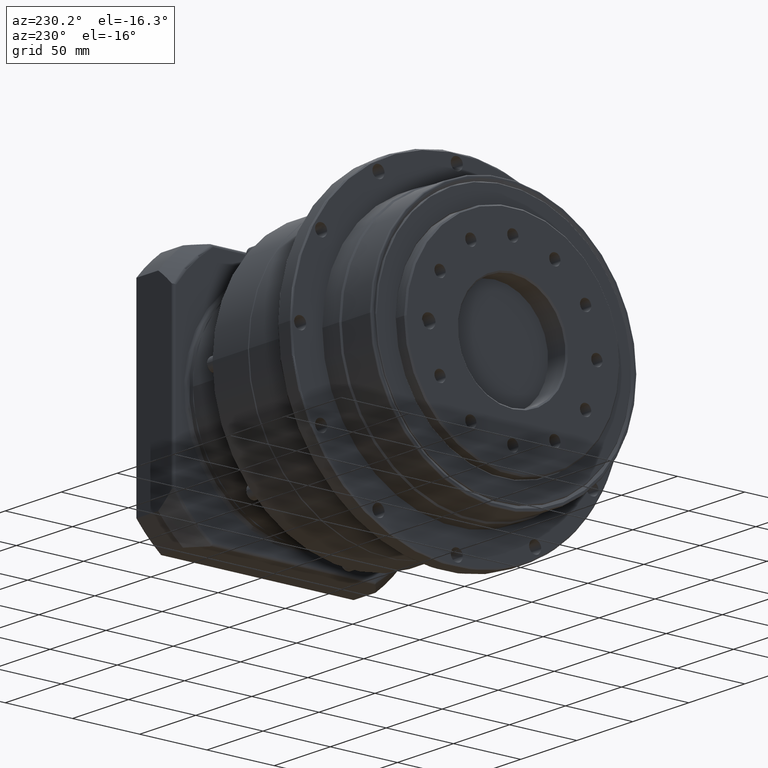
[diagram: clean part render]
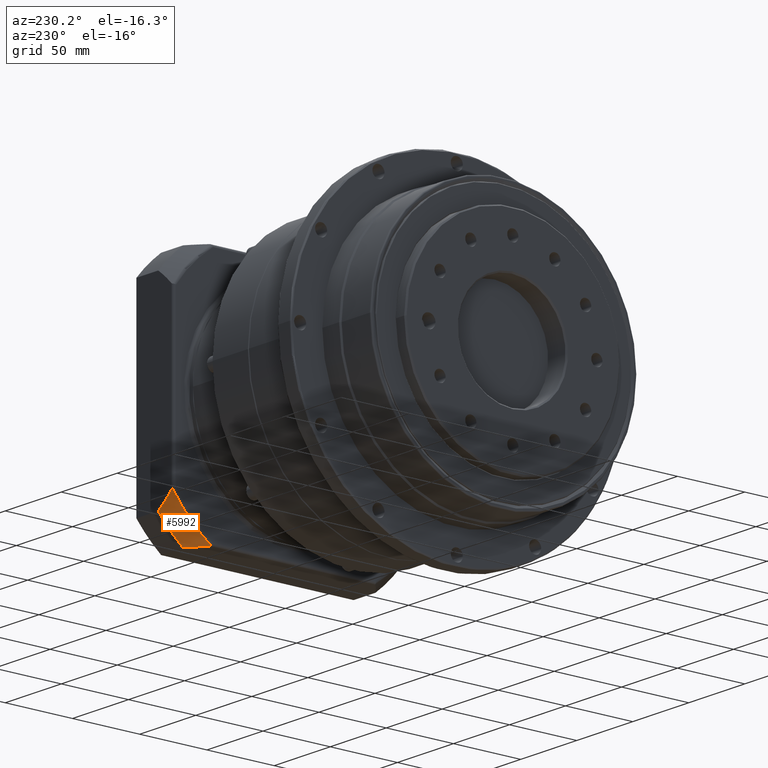
[diagram: same view with one face highlighted and labeled with its STEP entity id]
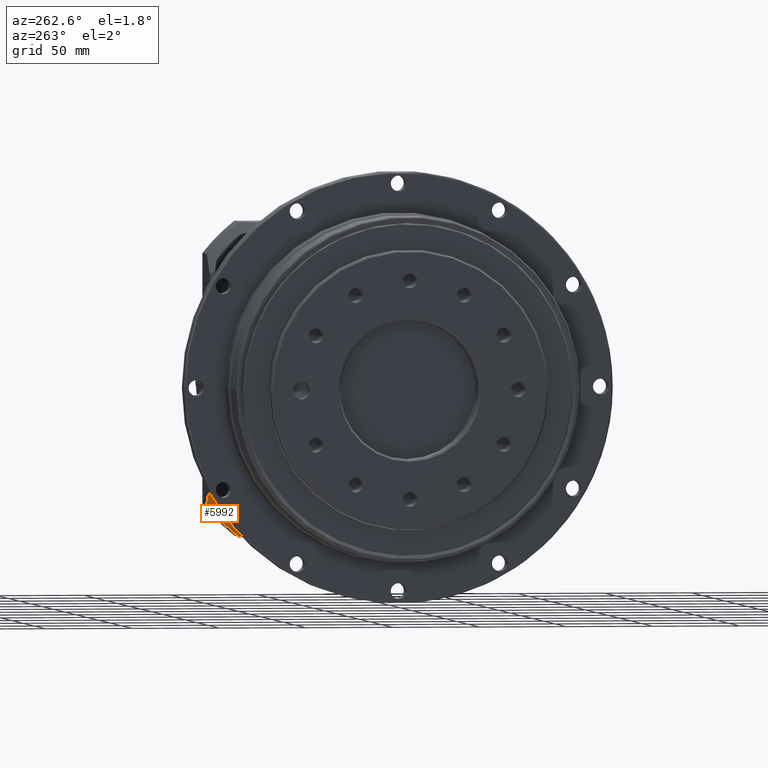
[diagram: same view with one face highlighted and labeled with its STEP entity id]
A machine part, auxiliary view. The second image highlights one B-rep face of the part: STEP entity #5992.
A second angle (auxiliary view) of the same face is appended — the face is thin or edge-on in the first view.
In plain terms, the highlighted spherical surface has radius 126 mm.
Its self-contained STEP definition (entity closure, byte-faithful):
#16=SPHERICAL_SURFACE('',#6552,126.);
#27=B_SPLINE_CURVE_WITH_KNOTS('',3,(#9617,#9618,#9619,#9620,#9621,#9622,
#9623,#9624,#9625,#9626),.UNSPECIFIED.,.F.,.F.,(4,2,2,2,4),(1.65195560966753,
1.68540556865933,1.72376962504577,1.7621336814322,1.7739907663131),
 .UNSPECIFIED.);
#40=B_SPLINE_CURVE_WITH_KNOTS('',3,(#9777,#9778,#9779,#9780,#9781,#9782,
#9783,#9784,#9785,#9786),.UNSPECIFIED.,.F.,.F.,(4,2,2,2,4),(0.0482114992776223,
0.0600685841585237,0.0984326405449604,0.136796696931397,0.1702466559232),
 .UNSPECIFIED.);
#1625=FACE_OUTER_BOUND('',#2133,.T.);
#2133=EDGE_LOOP('',(#4807,#4808,#4809,#4810,#4811,#4812));
#2739=CIRCLE('',#6532,108.526196025316);
#2743=CIRCLE('',#6539,88.1816307401944);
#2750=CIRCLE('',#6553,88.1816307401944);
#2751=CIRCLE('',#6554,115.);
#3191=VERTEX_POINT('',#9614);
#3192=VERTEX_POINT('',#9616);
#3203=VERTEX_POINT('',#9751);
#3206=VERTEX_POINT('',#9766);
#3208=VERTEX_POINT('',#9797);
#3214=VERTEX_POINT('',#9818);
#3809=EDGE_CURVE('',#3191,#3192,#27,.T.);
#3832=EDGE_CURVE('',#3206,#3203,#40,.T.);
#3833=EDGE_CURVE('',#3192,#3206,#2739,.T.);
#3838=EDGE_CURVE('',#3203,#3208,#2743,.T.);
#3846=EDGE_CURVE('',#3214,#3191,#2750,.T.);
#3847=EDGE_CURVE('',#3208,#3214,#2751,.T.);
#4807=ORIENTED_EDGE('',*,*,#3809,.F.);
#4808=ORIENTED_EDGE('',*,*,#3846,.F.);
#4809=ORIENTED_EDGE('',*,*,#3847,.F.);
#4810=ORIENTED_EDGE('',*,*,#3838,.F.);
#4811=ORIENTED_EDGE('',*,*,#3832,.F.);
#4812=ORIENTED_EDGE('',*,*,#3833,.F.);
#5992=ADVANCED_FACE('',(#1625),#16,.T.);
#6532=AXIS2_PLACEMENT_3D('',#9788,#7655,#7656);
#6539=AXIS2_PLACEMENT_3D('',#9798,#7670,#7671);
#6552=AXIS2_PLACEMENT_3D('',#9817,#7697,#7698);
#6553=AXIS2_PLACEMENT_3D('',#9819,#7699,#7700);
#6554=AXIS2_PLACEMENT_3D('',#9820,#7701,#7702);
#7655=DIRECTION('center_axis',(-1.,2.21052996687963E-16,1.32434103674276E-15));
#7656=DIRECTION('ref_axis',(-7.80142454724764E-16,0.707106781186546,-0.707106781186549));
#7670=DIRECTION('center_axis',(-1.32434103674276E-15,-2.77555756156287E-15,
-1.));
#7671=DIRECTION('ref_axis',(-2.2105299668796E-16,-1.,2.77555756156287E-15));
#7697=DIRECTION('center_axis',(-1.35341473478114E-15,-2.77731982033214E-15,
-1.));
#7698=DIRECTION('ref_axis',(1.,-2.25569122463524E-16,-1.29702245416526E-15));
#7699=DIRECTION('center_axis',(2.2105299668796E-16,1.,-2.67687107048508E-15));
#7700=DIRECTION('ref_axis',(-1.32434103674276E-15,-2.67687107048508E-15,
-1.));
#7701=DIRECTION('center_axis',(1.,-2.21052996687963E-16,-1.32434103674276E-15));
#7702=DIRECTION('ref_axis',(-1.32434103674276E-15,-2.77555756156287E-15,
-1.));
#9614=CARTESIAN_POINT('',(85.164604472402,105.67180156914,-16.2298293446943));
#9616=CARTESIAN_POINT('',(84.1484754401439,105.394439601288,-15.5845146583465));
#9617=CARTESIAN_POINT('Ctrl Pts',(85.164604472402,105.67180156914,-16.2298293446943));
#9618=CARTESIAN_POINT('Ctrl Pts',(85.0855213935975,105.67180156914,-16.1490811763721));
#9619=CARTESIAN_POINT('Ctrl Pts',(85.0039104804905,105.667160120554,-16.072212194914));
#9620=CARTESIAN_POINT('Ctrl Pts',(84.8221348051141,105.644689912033,-15.9180839933671));
#9621=CARTESIAN_POINT('Ctrl Pts',(84.7112008097949,105.623402410572,-15.8346813746402));
#9622=CARTESIAN_POINT('Ctrl Pts',(84.4817219540094,105.555413070574,-15.6962982393259));
#9623=CARTESIAN_POINT('Ctrl Pts',(84.3630318478516,105.508317191725,-15.6417528391877));
#9624=CARTESIAN_POINT('Ctrl Pts',(84.2188722149344,105.434484974781,-15.5994345494412));
#9625=CARTESIAN_POINT('Ctrl Pts',(84.1837999097472,105.415276375145,-15.5909318524293));
#9626=CARTESIAN_POINT('Ctrl Pts',(84.148475440144,105.394439601288,-15.5845146583469));
#9751=CARTESIAN_POINT('',(85.1646044724019,77.3726929727494,-44.5289379410848));
#9766=CARTESIAN_POINT('',(84.1484754401439,76.7273782864018,-44.2515759732328));
#9777=CARTESIAN_POINT('Ctrl Pts',(84.1484754401439,76.7273782864019,-44.2515759732327));
#9778=CARTESIAN_POINT('Ctrl Pts',(84.1837999097471,76.7337954804843,-44.2724127470894));
#9779=CARTESIAN_POINT('Ctrl Pts',(84.2188722149343,76.7422981774963,-44.2916213467253));
#9780=CARTESIAN_POINT('Ctrl Pts',(84.3630318478516,76.7846164672428,-44.3654535636696));
#9781=CARTESIAN_POINT('Ctrl Pts',(84.4817219540093,76.839161867381,-44.4125494425187));
#9782=CARTESIAN_POINT('Ctrl Pts',(84.7112008097948,76.9775450026953,-44.4805387825165));
#9783=CARTESIAN_POINT('Ctrl Pts',(84.822134805114,77.0609476214222,-44.5018262839781));
#9784=CARTESIAN_POINT('Ctrl Pts',(85.0039104804905,77.2150758229691,-44.524296492499));
#9785=CARTESIAN_POINT('Ctrl Pts',(85.0855213935974,77.2919448044272,-44.5289379410848));
#9786=CARTESIAN_POINT('Ctrl Pts',(85.164604472402,77.3726929727494,-44.5289379410848));
#9788=CARTESIAN_POINT('Origin',(84.148475440144,15.6718015691402,45.4710620589154));
#9797=CARTESIAN_POINT('',(96.6767418249779,87.2609068855217,-44.5289379410848));
#9798=CARTESIAN_POINT('Origin',(148.164604472402,15.6718015691399,-44.5289379410847));
#9817=CARTESIAN_POINT('Origin',(148.164604472402,15.6718015691402,45.4710620589153));
#9818=CARTESIAN_POINT('',(96.6767418249779,105.67180156914,-26.1180432574667));
#9819=CARTESIAN_POINT('Origin',(148.164604472402,105.67180156914,45.471062058915));
#9820=CARTESIAN_POINT('Origin',(96.676741824978,15.6718015691402,45.4710620589154));